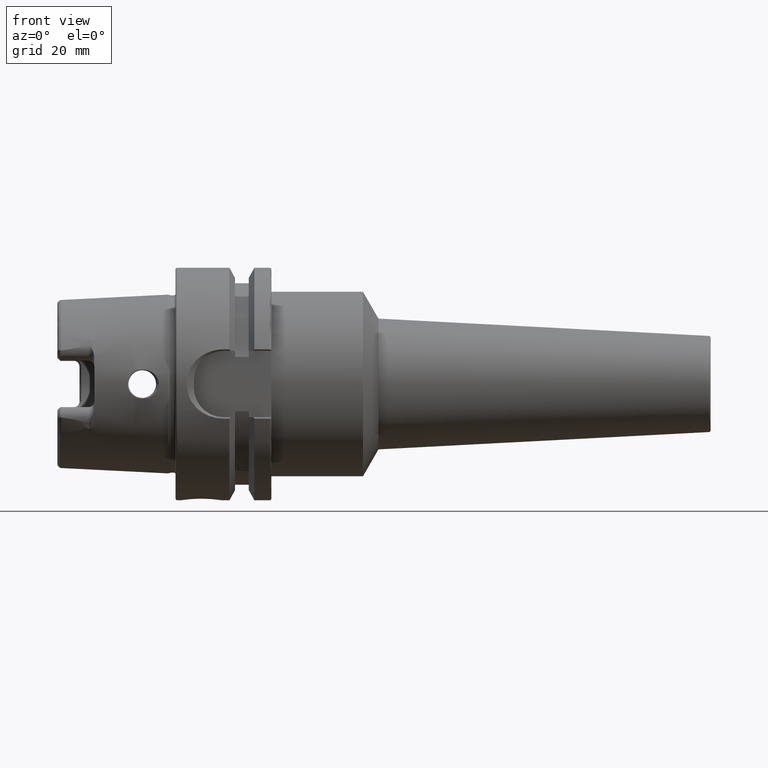
[diagram: clean part render]
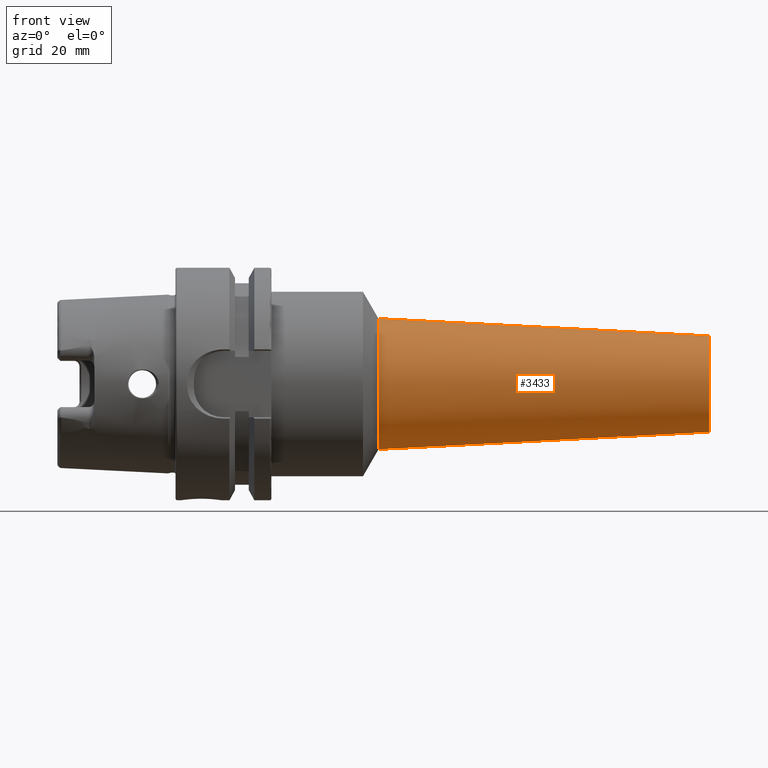
[diagram: same view with one face highlighted and labeled with its STEP entity id]
A machine part, front view. The second image highlights one B-rep face of the part: STEP entity #3433.
In plain terms, the highlighted conical surface has half-angle 3 deg.
Its self-contained STEP definition (entity closure, byte-faithful):
#464=CARTESIAN_POINT('',(1.445261679781E2,0.E0,0.E0));
#465=DIRECTION('',(-1.E0,0.E0,0.E0));
#466=DIRECTION('',(0.E0,0.E0,-1.E0));
#467=AXIS2_PLACEMENT_3D('',#464,#465,#466);
#469=DIRECTION('',(-9.986295347546E-1,5.388780736736E-13,-5.233595624294E-2));
#470=VECTOR('',#469,8.964902885648E1);
#471=CARTESIAN_POINT('',(1.445261679781E2,-4.830772630688E-11,
-1.302483248402E1));
#472=LINE('',#471,#470);
#473=DIRECTION('',(-9.986295347546E-1,-5.388991677616E-13,5.233595624294E-2));
#474=VECTOR('',#473,8.964902885648E1);
#475=CARTESIAN_POINT('',(1.445261679781E2,4.830961737138E-11,1.302483248402E1));
#476=LINE('',#475,#474);
#500=CARTESIAN_POINT('',(5.5E1,0.E0,0.E0));
#501=DIRECTION('',(-1.E0,0.E0,0.E0));
#502=DIRECTION('',(0.E0,0.E0,-1.E0));
#503=AXIS2_PLACEMENT_3D('',#500,#501,#502);
#2873=CARTESIAN_POINT('',(5.5E1,0.E0,-1.771670013547E1));
#2875=VERTEX_POINT('',#2873);
#2877=CARTESIAN_POINT('',(5.5E1,0.E0,1.771670013547E1));
#2879=VERTEX_POINT('',#2877);
#2899=CARTESIAN_POINT('',(1.445261679781E2,0.E0,-1.302483248402E1));
#2900=CARTESIAN_POINT('',(1.445261679781E2,0.E0,1.302483248402E1));
#2901=VERTEX_POINT('',#2899);
#2902=VERTEX_POINT('',#2900);
#3419=CARTESIAN_POINT('',(9.976308398906E1,0.E0,0.E0));
#3420=DIRECTION('',(-1.E0,0.E0,0.E0));
#3421=DIRECTION('',(0.E0,0.E0,-1.E0));
#3422=AXIS2_PLACEMENT_3D('',#3419,#3420,#3421);
#3423=CONICAL_SURFACE('',#3422,1.537076630975E1,3.E0);
#3424=ORIENTED_EDGE('',*,*,#3409,.F.);
#3426=ORIENTED_EDGE('',*,*,#3425,.T.);
#3428=ORIENTED_EDGE('',*,*,#3427,.T.);
#3430=ORIENTED_EDGE('',*,*,#3429,.F.);
#3431=EDGE_LOOP('',(#3424,#3426,#3428,#3430));
#3432=FACE_OUTER_BOUND('',#3431,.F.);
#3433=ADVANCED_FACE('',(#3432),#3423,.T.);
#468=CIRCLE('',#467,1.302483248402E1);
#504=CIRCLE('',#503,1.771670013547E1);
#3409=EDGE_CURVE('',#2901,#2902,#468,.T.);
#3425=EDGE_CURVE('',#2901,#2875,#472,.T.);
#3427=EDGE_CURVE('',#2875,#2879,#504,.T.);
#3429=EDGE_CURVE('',#2902,#2879,#476,.T.);